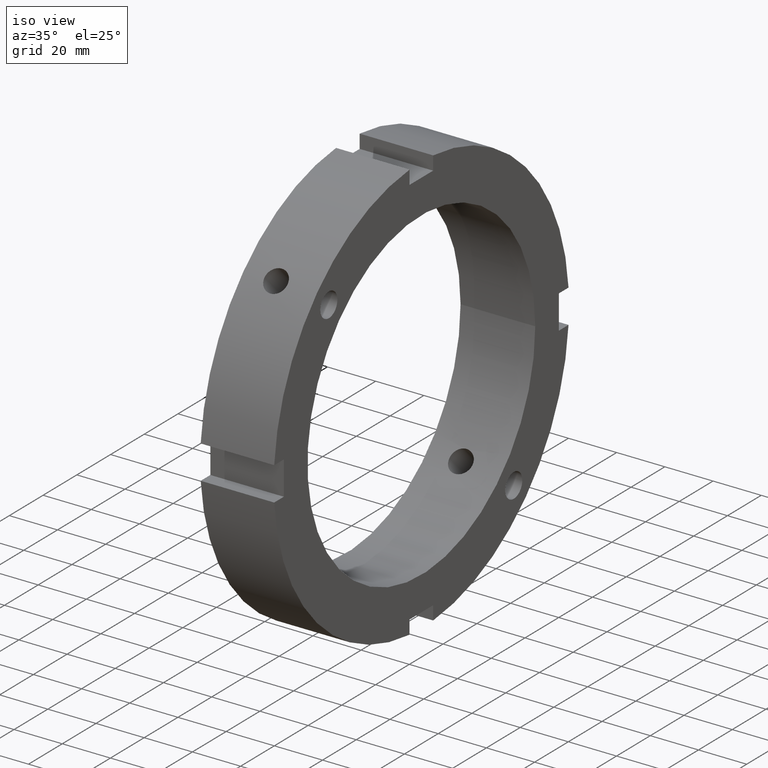
[diagram: clean part render]
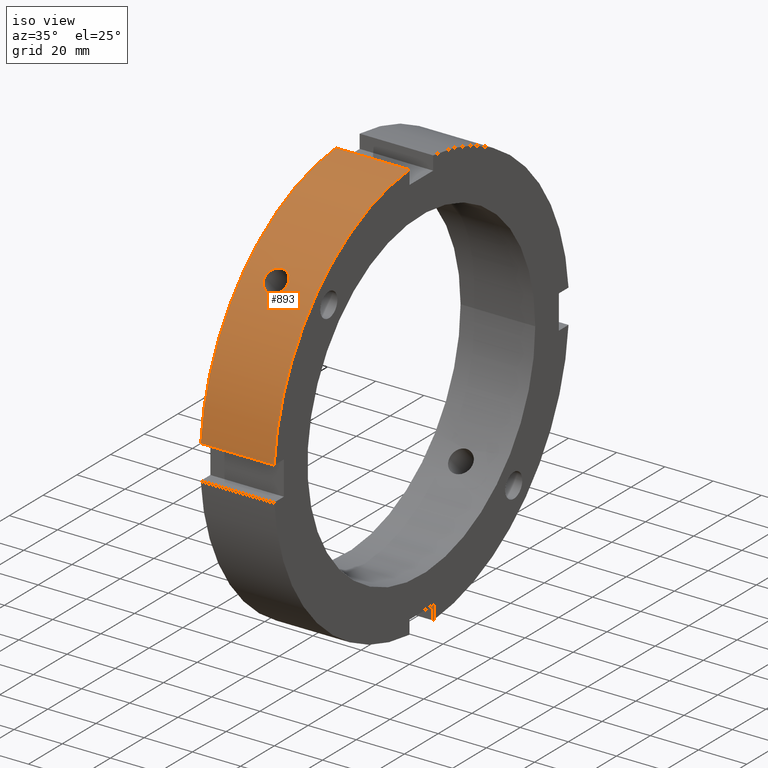
[diagram: same view with one face highlighted and labeled with its STEP entity id]
A machine part, iso view. The second image highlights one B-rep face of the part: STEP entity #893.
In plain terms, the highlighted cylindrical surface (partial cylindrical patch) has radius 87.5 mm, axis along (1, 0, 0).
Its self-contained STEP definition (entity closure, byte-faithful):
#209=CARTESIAN_POINT('',(13.999999999999982,-65.172790101096609,58.384565001705766));
#210=VERTEX_POINT('',#209);
#211=CARTESIAN_POINT('',(13.999999999999982,-65.172790101096595,58.384565001705766));
#212=CARTESIAN_POINT('',(13.397171395844389,-65.172790101096595,58.384565001705766));
#213=CARTESIAN_POINT('',(12.75424406896342,-65.092449292509031,58.474637228254196));
#214=CARTESIAN_POINT('',(11.571659076206625,-64.763619835574147,58.838624215635768));
#215=CARTESIAN_POINT('',(11.031991148327833,-64.514882597757008,59.11228096903514));
#216=CARTESIAN_POINT('',(10.179783882766385,-63.93567349453059,59.738274938718604));
#217=CARTESIAN_POINT('',(9.81039545068413,-63.56652217477712,60.132329405321997));
#218=CARTESIAN_POINT('',(9.32050016170907,-62.74786822243663,60.986103455164901));
#219=CARTESIAN_POINT('',(9.199999999999983,-62.298107417180297,61.445579290465524));
#220=CARTESIAN_POINT('',(9.19999999999998,-61.445579290465524,62.298107417180297));
#221=CARTESIAN_POINT('',(9.32050016170906,-60.986103455164908,62.747868222436622));
#222=CARTESIAN_POINT('',(9.810395450684109,-60.132329405322018,63.566522174777106));
#223=CARTESIAN_POINT('',(10.179783882766387,-59.738274938718604,63.935673494530548));
#224=CARTESIAN_POINT('',(11.03199114832783,-59.11228096903514,64.51488259775698));
#225=CARTESIAN_POINT('',(11.571659076206604,-58.838624215635768,64.763619835574175));
#226=CARTESIAN_POINT('',(12.754244068963406,-58.474637228254174,65.092449292509059));
#227=CARTESIAN_POINT('',(13.397171395844385,-58.384565001705731,65.172790101096624));
#228=CARTESIAN_POINT('',(14.602828604155572,-58.384565001705731,65.172790101096624));
#229=CARTESIAN_POINT('',(15.245755931036548,-58.474637228254174,65.092449292509059));
#230=CARTESIAN_POINT('',(16.428340923793343,-58.838624215635747,64.763619835574161));
#231=CARTESIAN_POINT('',(16.968008851672131,-59.112280969035112,64.514882597757008));
#232=CARTESIAN_POINT('',(17.820216117233581,-59.738274938718575,63.935673494530576));
#233=CARTESIAN_POINT('',(18.189604549315845,-60.132329405321997,63.56652217477712));
#234=CARTESIAN_POINT('',(18.679499838290901,-60.986103455164901,62.74786822243663));
#235=CARTESIAN_POINT('',(18.799999999999983,-61.445579290465503,62.298107417180297));
#236=CARTESIAN_POINT('',(18.799999999999983,-62.29810741718029,61.445579290465524));
#237=CARTESIAN_POINT('',(18.679499838290901,-62.747868222436615,60.986103455164908));
#238=CARTESIAN_POINT('',(18.189604549315849,-63.566522174777091,60.132329405322018));
#239=CARTESIAN_POINT('',(17.820216117233571,-63.93567349453054,59.738274938718618));
#240=CARTESIAN_POINT('',(16.968008851672131,-64.514882597756966,59.112280969035154));
#241=CARTESIAN_POINT('',(16.428340923793346,-64.763619835574147,58.838624215635782));
#242=CARTESIAN_POINT('',(15.245755931036545,-65.092449292509031,58.474637228254196));
#243=CARTESIAN_POINT('',(14.602828604155579,-65.172790101096595,58.384565001705752));
#244=CARTESIAN_POINT('',(13.999999999999984,-65.172790101096595,58.384565001705752));
#245=B_SPLINE_CURVE_WITH_KNOTS('',3,(#211,#212,#213,#214,#215,#216,#217,#218,#219,#220,#221,#222,#223,#224,#225,#226,#227,#228,#229,#230,#231,#232,#233,#234,#235,#236,#237,#238,#239,#240,#241,#242,#243,#244),.UNSPECIFIED.,.T.,.U.,(4,2,2,2,2,2,2,2,2,2,2,2,2,2,2,2,4),(0.0,0.180848581246678,0.361697162493355,0.542545688359041,0.723394214224727,0.90424274009041,1.085091265956093,1.265939847202772,1.446788428449451,1.627637009696129,1.808485590942807,1.989334116808493,2.170182642674178,2.351031168539862,2.531879694405545,2.712728275652224,2.893576856898903),.UNSPECIFIED.);
#246=EDGE_CURVE('',#210,#210,#245,.T.);
#637=CARTESIAN_POINT('',(0.499999999999976,-87.219550560639789,7.000000000000007));
#638=VERTEX_POINT('',#637);
#653=CARTESIAN_POINT('',(30.999999999999979,-87.219550560639789,7.000000000000006));
#654=VERTEX_POINT('',#653);
#661=CARTESIAN_POINT('',(0.499999999999975,-87.219550560639789,7.000000000000005));
#662=DIRECTION('',(1.0,0.0,0.0));
#663=VECTOR('',#662,30.500000000000004);
#664=LINE('',#661,#663);
#665=EDGE_CURVE('',#638,#654,#664,.T.);
#777=CARTESIAN_POINT('',(0.499999999999976,-6.999999999999989,87.219550560639789));
#778=VERTEX_POINT('',#777);
#787=CARTESIAN_POINT('',(30.999999999999979,-6.999999999999991,87.219550560639789));
#788=VERTEX_POINT('',#787);
#789=CARTESIAN_POINT('',(30.999999999999979,-6.999999999999992,87.219550560639789));
#790=DIRECTION('',(-1.0,0.0,0.0));
#791=VECTOR('',#790,30.500000000000004);
#792=LINE('',#789,#791);
#793=EDGE_CURVE('',#788,#778,#792,.T.);
#867=CARTESIAN_POINT('',(15.749999999999977,0.0,0.0));
#868=DIRECTION('',(1.0,0.0,0.0));
#869=DIRECTION('',(0.0,1.0,0.0));
#870=AXIS2_PLACEMENT_3D('',#867,#868,#869);
#871=CYLINDRICAL_SURFACE('',#870,87.5);
#872=ORIENTED_EDGE('',*,*,#665,.T.);
#873=CARTESIAN_POINT('',(30.999999999999979,0.0,0.0));
#874=DIRECTION('',(1.0,0.0,0.0));
#875=DIRECTION('',(0.0,1.0,0.0));
#876=AXIS2_PLACEMENT_3D('',#873,#874,#875);
#877=CIRCLE('',#876,87.5);
#878=EDGE_CURVE('',#788,#654,#877,.T.);
#879=ORIENTED_EDGE('',*,*,#878,.F.);
#880=ORIENTED_EDGE('',*,*,#793,.T.);
#881=CARTESIAN_POINT('',(0.499999999999976,0.0,0.0));
#882=DIRECTION('',(1.0,0.0,0.0));
#883=DIRECTION('',(0.0,1.0,0.0));
#884=AXIS2_PLACEMENT_3D('',#881,#882,#883);
#885=CIRCLE('',#884,87.5);
#886=EDGE_CURVE('',#778,#638,#885,.T.);
#887=ORIENTED_EDGE('',*,*,#886,.T.);
#888=EDGE_LOOP('',(#872,#879,#880,#887));
#889=FACE_OUTER_BOUND('',#888,.T.);
#890=ORIENTED_EDGE('',*,*,#246,.T.);
#891=EDGE_LOOP('',(#890));
#892=FACE_BOUND('',#891,.T.);
#893=ADVANCED_FACE('',(#889,#892),#871,.T.);